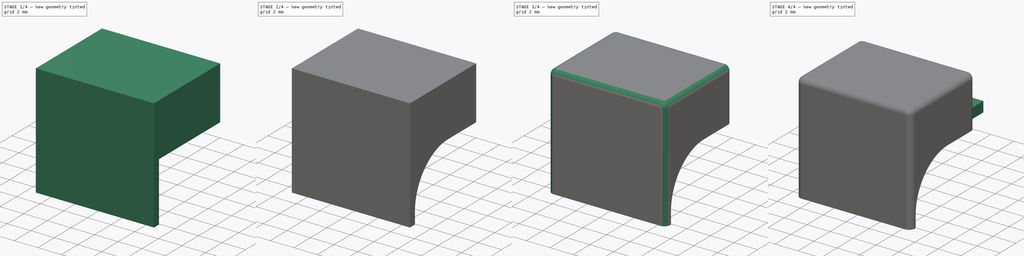
[diagram: build sequence overview — one tinted view per stage of 4, left to right]
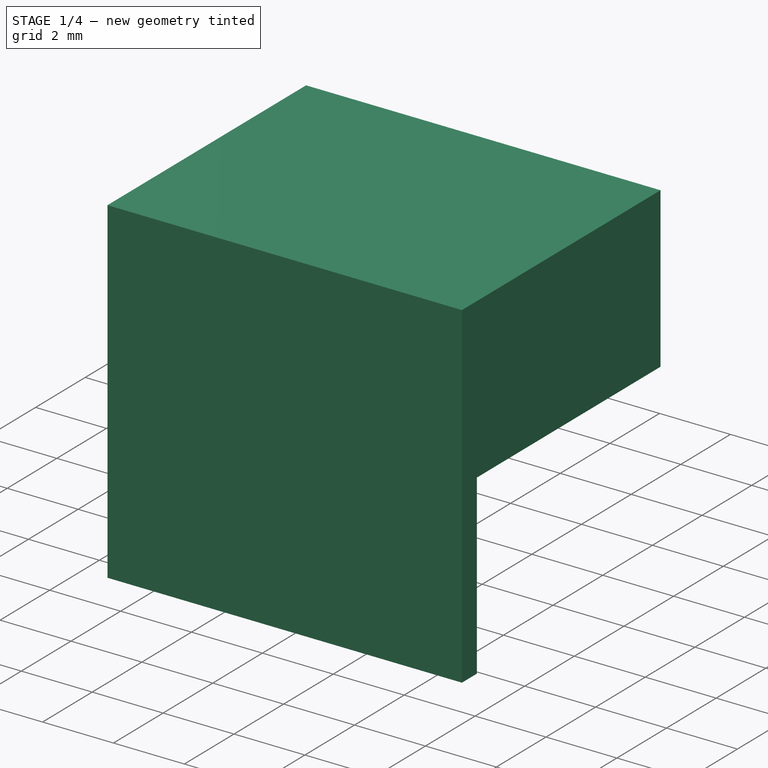
[diagram: stage 1 of 4 — iso view after this stage's code; geometry added in this stage tinted green]
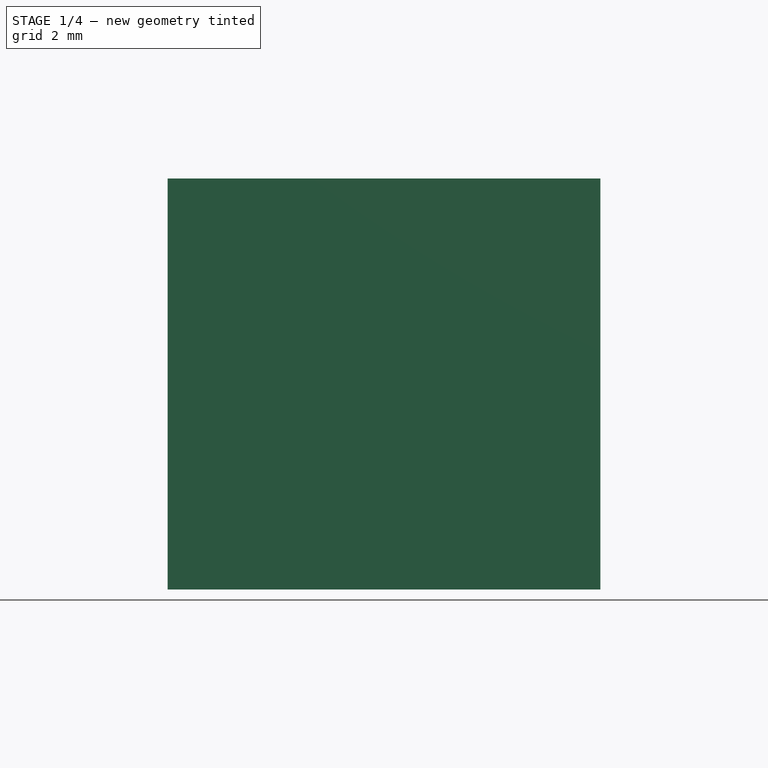
[diagram: stage 1 of 4 — front view after this stage's code; geometry added in this stage tinted green]
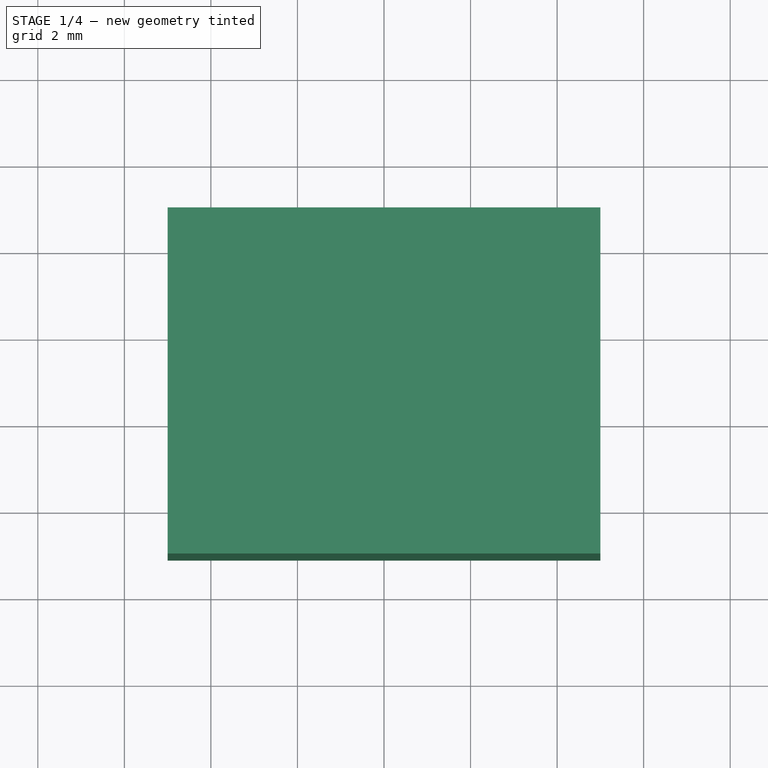
[diagram: stage 1 of 4 — top view after this stage's code; geometry added in this stage tinted green]
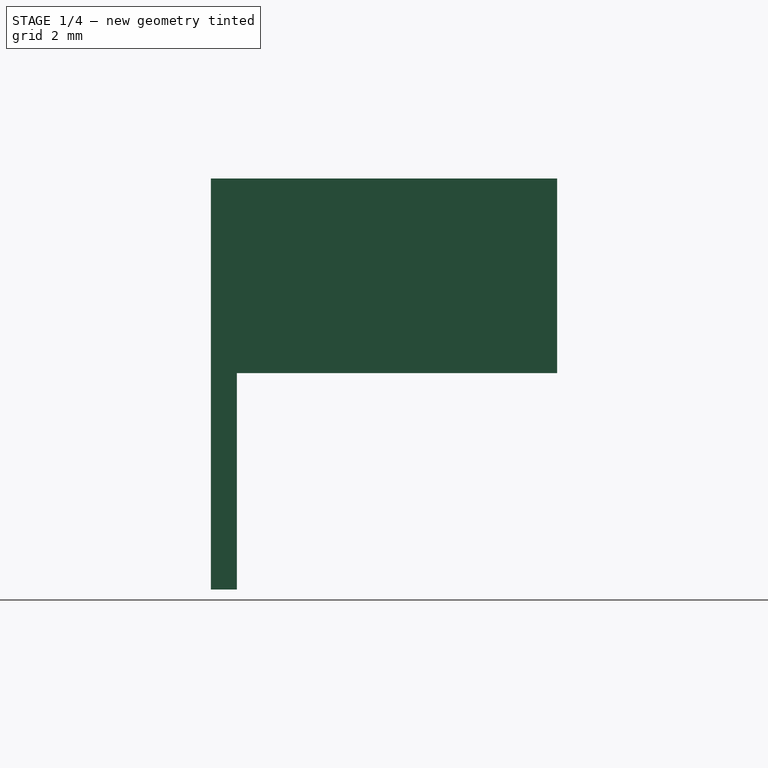
[diagram: stage 1 of 4 — right view after this stage's code; geometry added in this stage tinted green]
FCSTD DOCUMENT  (FreeCAD 0.18R16146 (Git))
Label: ButtonOhne
License: All rights reserved
LicenseURL: http://en.wikipedia.org/wiki/All_rights_reserved
objects: Sketcher::SketchObject×5, PartDesign::Fillet×5, PartDesign::Pad×3, Part::Feature×2, PartDesign::Pocket×2, PartDesign::Plane×1, PartDesign::Mirrored×1, PartDesign::Body×1
note: 25 computed .brp shape members not serialized (recipe doc carries the construction recipe); baked Part::Feature solids carry a one-line shape summary decoded from their .brp

FEATURE [Part::Feature] Part__Feature  label="LED_WS2812_PLCC6_50x50mm_P16mm"
  shape: bbox 5.4 x 5 x 1.85 mm, 94 faces (baked)
FEATURE [PartDesign::Plane] DatumPlane  label="UnterkanteFaceplate"
  Length = 24
  MapMode = 2
  Placement = pos=(0,0,10) rot=(0,0,1;0rad)
  ResizeMode = 0
  Width = 24
FEATURE [Sketcher::SketchObject] Sketch
  MapMode = 5
  Placement = pos=(0,0,10) rot=(0,0,1;0rad)
  Support = -> [DatumPlane]
  sketch-geometry (5):
    g0: LineSegment StartX=-5 StartY=2.9 StartZ=0 EndX=5 EndY=2.9 EndZ=0
    g1: LineSegment StartX=5 StartY=2.9 StartZ=0 EndX=5 EndY=-5.1 EndZ=0
    g2: LineSegment StartX=5 StartY=-5.1 StartZ=0 EndX=-5 EndY=-5.1 EndZ=0
    g3: LineSegment StartX=-5 StartY=-5.1 StartZ=0 EndX=-5 EndY=2.9 EndZ=0
    g4: GeomPoint X=0 Y=-1.1 Z=0
  constraints (13):
    c: Coincident(g0,g1)
    c: Coincident(g1,g2)
    c: Coincident(g2,g3)
    c: Coincident(g3,g0)
    c: Horizontal(g0)
    c: Horizontal(g2)
    c: Vertical(g1)
    c: Vertical(g3)
    c: DistanceY(g1,g1) = 8
    c: DistanceX(g0,g0) = 10
    c: PointOnObject(g4,g-2)
    c: DistanceY(g4,g-1) = 1.1
    c: Symmetric(g0,g1,g4)
FEATURE [Part::Feature] Part__Feature001  label="SW_SPST_CK_RS282G05A3"
  Placement = pos=(0,-4.5,0) rot=(0,0,1;0rad)
  shape: bbox 8 x 3.5 x 2.5 mm, 109 faces (baked)
FEATURE [PartDesign::Pad] Pad
  Length = 2
  Length2 = 7.5
  Placement = pos=(0,0,10) rot=(0,0,1;0rad)
  Profile = -> Sketch
  Reversed = true
  Type = 4
FEATURE [Sketcher::SketchObject] Sketch001
  ExternalGeometry = -> [Pad]
  MapMode = 5
  Placement = pos=(0,0,2.5) rot=(1,0,0;3.14159rad)
  Support = -> [Pad]
  sketch-geometry (5):
    g0: GeomPoint X=0 Y=1.1 Z=0
    g1: LineSegment StartX=-4.6 StartY=4.5 StartZ=0 EndX=4.6 EndY=4.5 EndZ=0
    g2: LineSegment StartX=4.6 StartY=4.5 StartZ=0 EndX=4.6 EndY=-2.5 EndZ=0
    g3: LineSegment StartX=4.6 StartY=-2.5 StartZ=0 EndX=-4.6 EndY=-2.5 EndZ=0
    g4: LineSegment StartX=-4.6 StartY=-2.5 StartZ=0 EndX=-4.6 EndY=4.5 EndZ=0
  constraints (12):
    c: Symmetric(g-3,g-4,g0)
    c: Coincident(g1,g2)
    c: Coincident(g2,g3)
    c: Coincident(g3,g4)
    c: Coincident(g4,g1)
    c: Horizontal(g1)
    c: Vertical(g2)
    c: Vertical(g4)
    c: DistanceY(g1,g-3) = 0.6
    c: DistanceY(g-4,g2) = 0.4
    c: Symmetric(g3,g2,g-2)
    c: DistanceX(g2,g-4) = 0.4
FEATURE [PartDesign::Pocket] Pocket
  BaseFeature = -> Pad
  Length = 8
  Length2 = 100
  Placement = pos=(0,0,10) rot=(0,0,1;0rad)
  Profile = -> Sketch001
  Type = 0
FEATURE [Sketcher::SketchObject] Sketch002
  ExternalGeometry = -> [Pocket]
  MapMode = 5
  Placement = pos=(0,0,2.5) rot=(1,0,0;3.14159rad)
  Support = -> [Pocket]
  sketch-geometry (8):
    g0: LineSegment StartX=-4.6 StartY=4.5 StartZ=0 EndX=-5 EndY=4.5 EndZ=0
    g1: LineSegment StartX=-5 StartY=4.5 StartZ=0 EndX=-5 EndY=-2.9 EndZ=0
    g2: LineSegment StartX=-5 StartY=-2.9 StartZ=0 EndX=5 EndY=-2.9 EndZ=0
    g3: LineSegment StartX=5 StartY=-2.9 StartZ=0 EndX=5 EndY=4.5 EndZ=0
    g4: LineSegment StartX=5 StartY=4.5 StartZ=0 EndX=4.6 EndY=4.5 EndZ=0
    g5: LineSegment StartX=-4.6 StartY=4.5 StartZ=0 EndX=-4.6 EndY=-2.5 EndZ=0
    g6: LineSegment StartX=-4.6 StartY=-2.5 StartZ=0 EndX=4.6 EndY=-2.5 EndZ=0
    g7: LineSegment StartX=4.6 StartY=-2.5 StartZ=0 EndX=4.6 EndY=4.5 EndZ=0
  constraints (18):
    c: Coincident(g0,g-6)
    c: PointOnObject(g0,g-4)
    c: Horizontal(g0)
    c: Coincident(g0,g1)
    c: Coincident(g1,g-4)
    c: Coincident(g1,g2)
    c: Coincident(g2,g-7)
    c: Coincident(g2,g3)
    c: PointOnObject(g3,g-7)
    c: Coincident(g3,g4)
    c: Coincident(g4,g-8)
    c: Horizontal(g4)
    c: Coincident(g0,g5)
    c: Coincident(g5,g-5)
    c: Coincident(g5,g6)
    c: Coincident(g6,g-8)
    c: Coincident(g6,g7)
    c: Coincident(g7,g4)
FEATURE [PartDesign::Pocket] Pocket001
  BaseFeature = -> Pocket
  Length = 5
  Length2 = 100
  Placement = pos=(0,0,10) rot=(0,0,1;0rad)
  Profile = -> Sketch002
  Type = 0
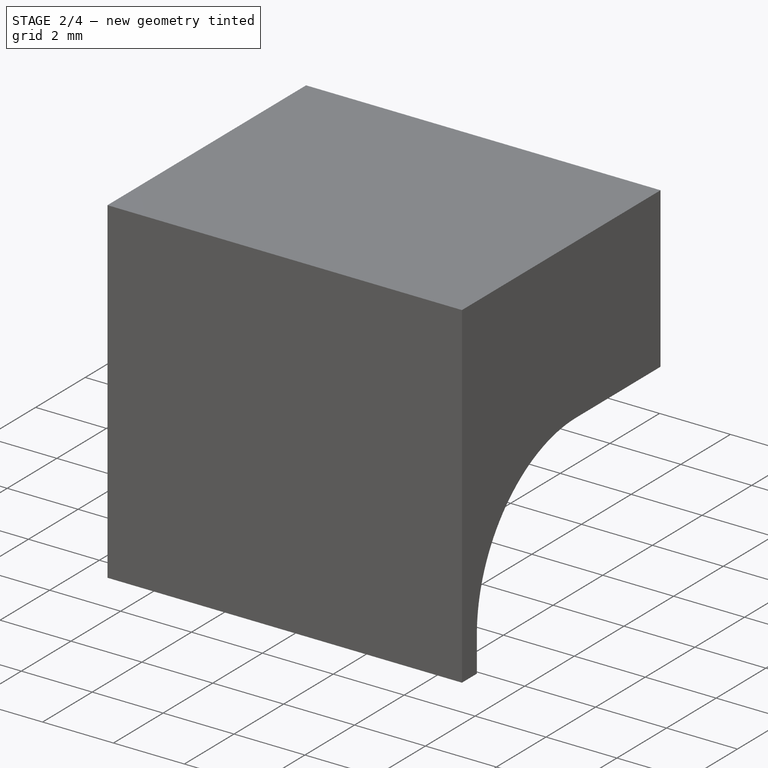
[diagram: stage 2 of 4 — iso view after this stage's code; geometry added in this stage tinted green]
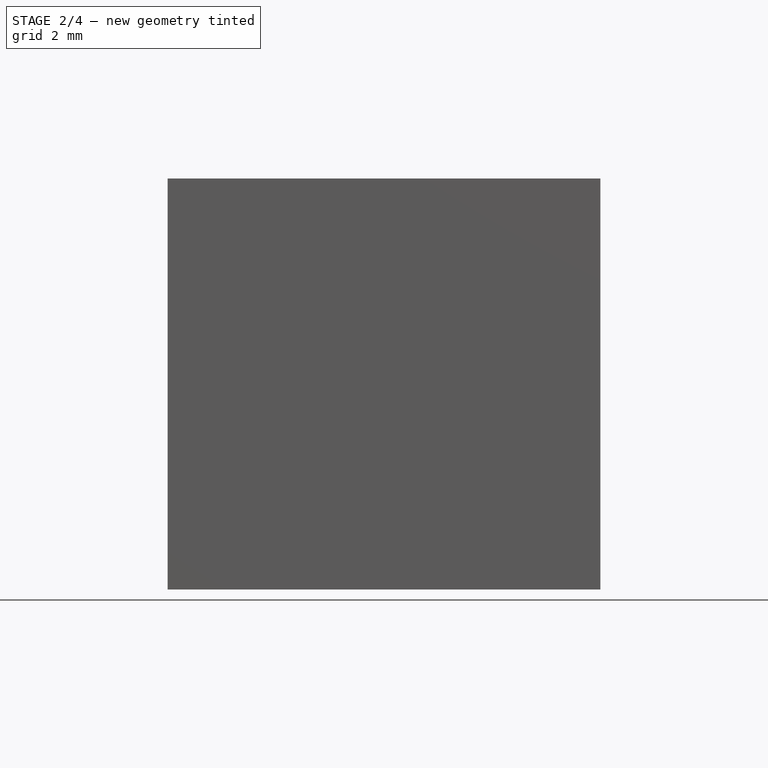
[diagram: stage 2 of 4 — front view after this stage's code; geometry added in this stage tinted green]
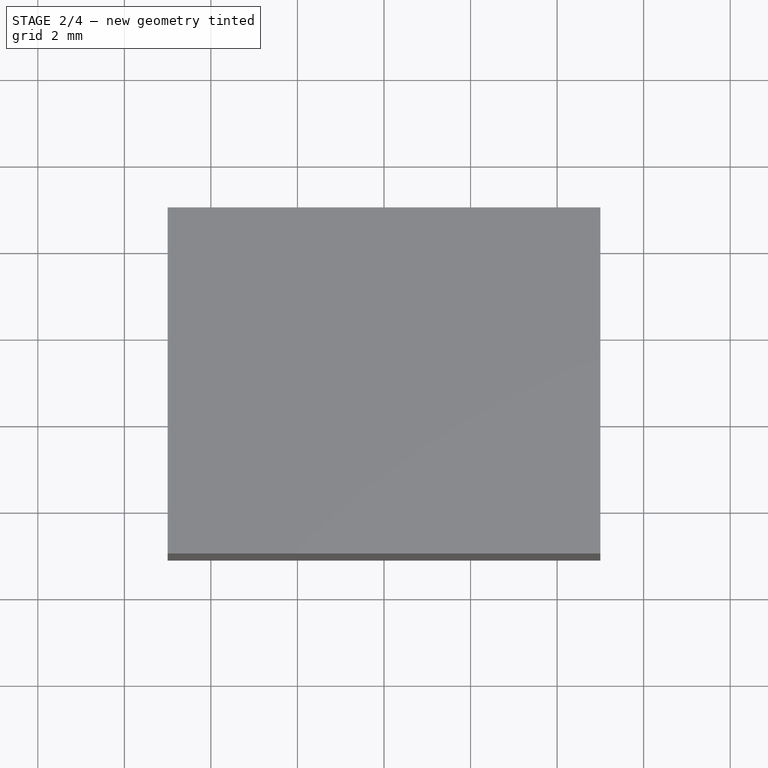
[diagram: stage 2 of 4 — top view after this stage's code; geometry added in this stage tinted green]
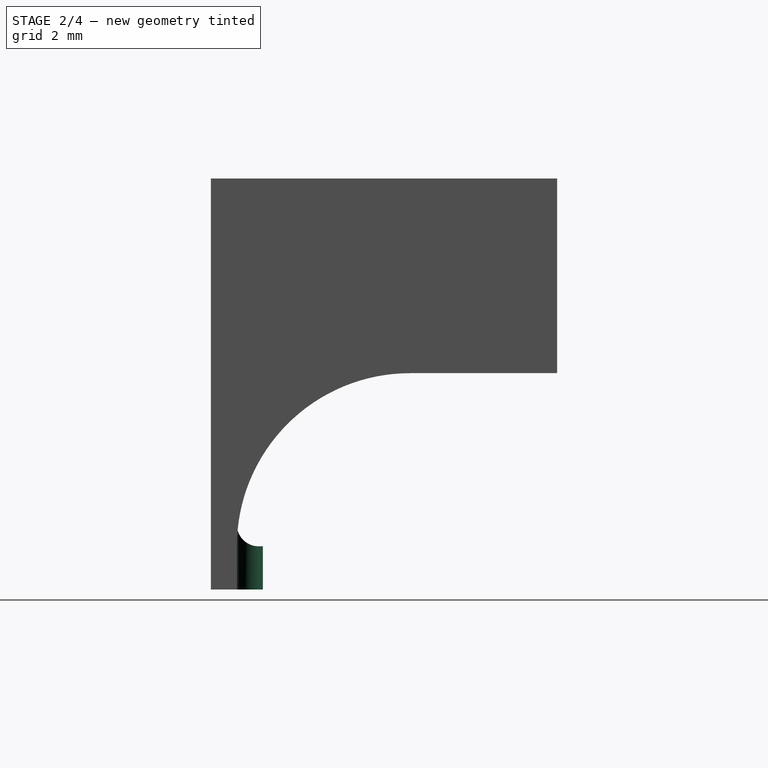
[diagram: stage 2 of 4 — right view after this stage's code; geometry added in this stage tinted green]
FEATURE [Sketcher::SketchObject] Sketch003
  ExternalGeometry = -> [Pocket001]
  MapMode = 5
  Placement = pos=(0,-4.5,10) rot=(0,0.707107,0.707107;3.14159rad)
  Support = -> [Pocket001]
  sketch-geometry (5):
    g0: LineSegment StartX=-1.5 StartY=-6.5 StartZ=0 EndX=1.5 EndY=-6.5 EndZ=0
    g1: LineSegment StartX=1.5 StartY=-6.5 StartZ=0 EndX=1.5 EndY=-7.5 EndZ=0
    g2: LineSegment StartX=1.5 StartY=-7.5 StartZ=0 EndX=-1.5 EndY=-7.5 EndZ=0
    g3: LineSegment StartX=-1.5 StartY=-7.5 StartZ=0 EndX=-1.5 EndY=-6.5 EndZ=0
    g4: GeomPoint X=0 Y=-7 Z=0
  constraints (12):
    c: Coincident(g0,g1)
    c: Coincident(g1,g2)
    c: Coincident(g2,g3)
    c: Coincident(g3,g0)
    c: Horizontal(g0)
    c: Vertical(g1)
    c: Vertical(g3)
    c: DistanceY(g1,g1) = 1
    c: DistanceX(g0,g0) = 3
    c: PointOnObject(g4,g-2)
    c: Symmetric(g0,g1,g4)
    c: Tangent(g2,g-3)
FEATURE [PartDesign::Pad] Pad001  label="Lasche Btn"
  BaseFeature = -> Pocket001
  Length = 0.6
  Length2 = 100
  Placement = pos=(0,0,10) rot=(0,0,1;0rad)
  Profile = -> Sketch003
  Type = 0
FEATURE [PartDesign::Fillet] Fillet
  Base = -> Pad001 [Edge37,Edge36,Edge38]
  BaseFeature = -> Pad001
  Placement = pos=(0,0,10) rot=(0,0,1;0rad)
  Radius = 0.5
FEATURE [PartDesign::Fillet] Fillet001
  Base = -> Fillet [Edge25,Edge36]
  BaseFeature = -> Fillet
  Placement = pos=(0,0,10) rot=(0,0,1;0rad)
  Radius = 4
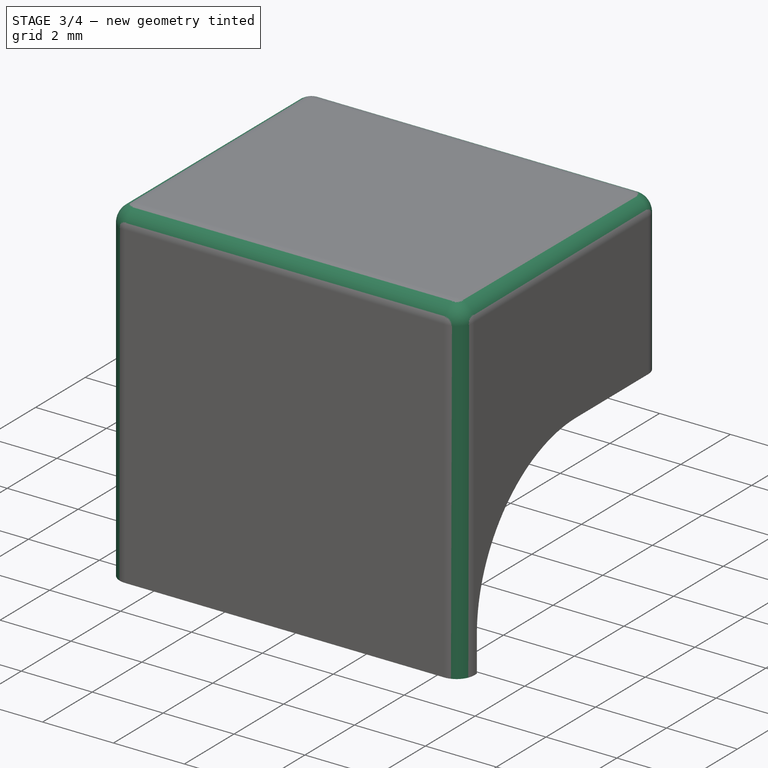
[diagram: stage 3 of 4 — iso view after this stage's code; geometry added in this stage tinted green]
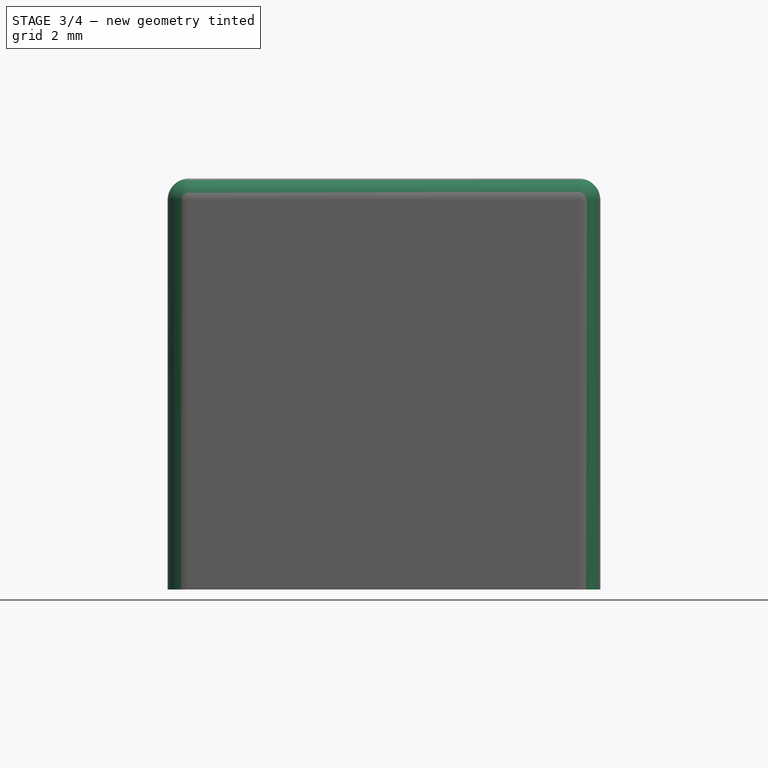
[diagram: stage 3 of 4 — front view after this stage's code; geometry added in this stage tinted green]
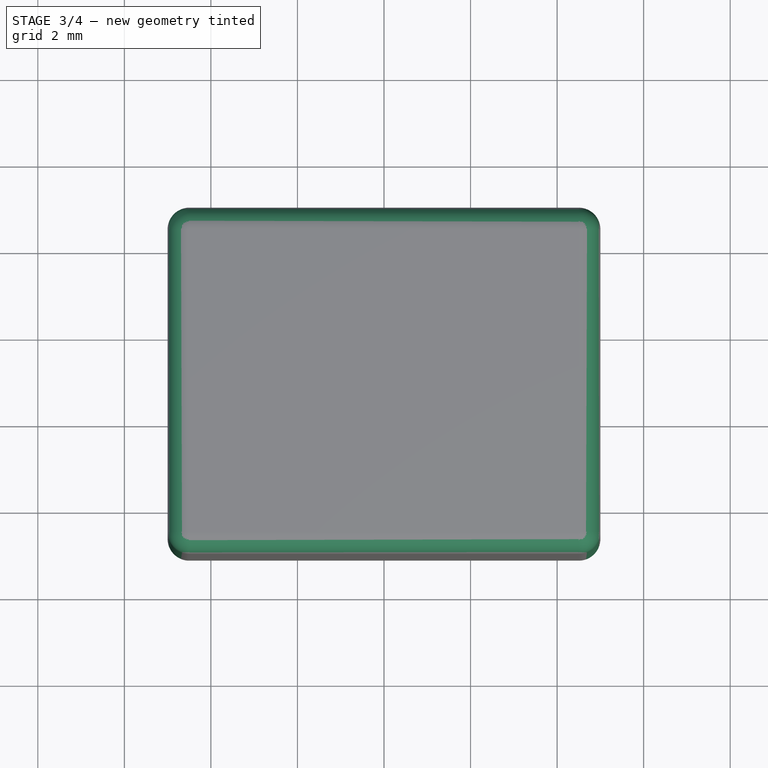
[diagram: stage 3 of 4 — top view after this stage's code; geometry added in this stage tinted green]
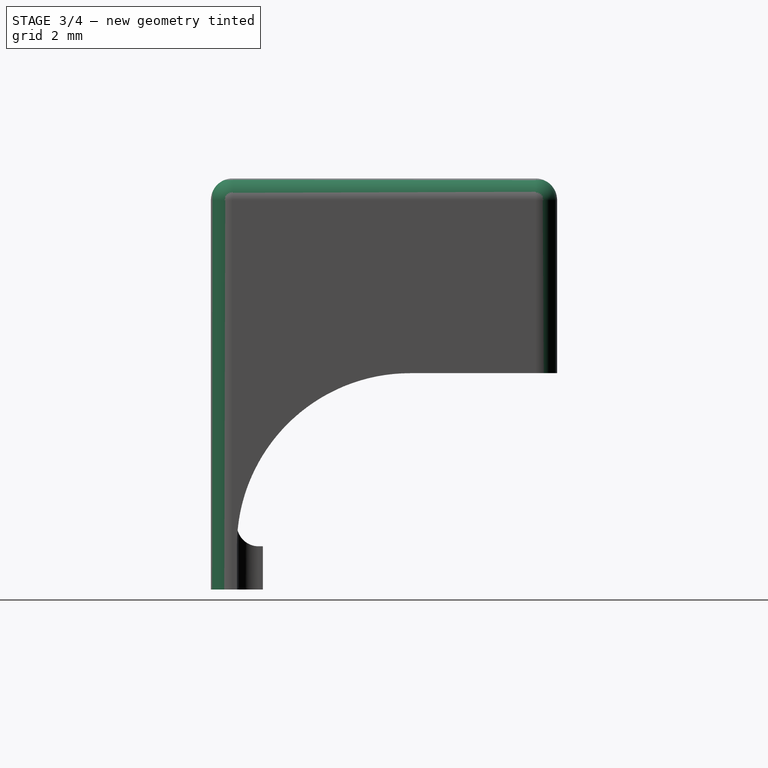
[diagram: stage 3 of 4 — right view after this stage's code; geometry added in this stage tinted green]
FEATURE [PartDesign::Fillet] Fillet002  label="Fillet002innen"
  Base = -> Fillet001 [Edge27,Edge29,Edge26,Edge53,Edge23,Edge52,Edge51,Edge22,Edge24]
  BaseFeature = -> Fillet001
  Placement = pos=(0,0,10) rot=(0,0,1;0rad)
  Radius = 0.4
FEATURE [PartDesign::Fillet] Fillet003
  Base = -> Fillet002 [Edge58,Edge59,Edge57,Edge62,Edge80,Edge37,Edge38,Edge36]
  BaseFeature = -> Fillet002
  Placement = pos=(0,0,10) rot=(0,0,1;0rad)
  Radius = 0.5
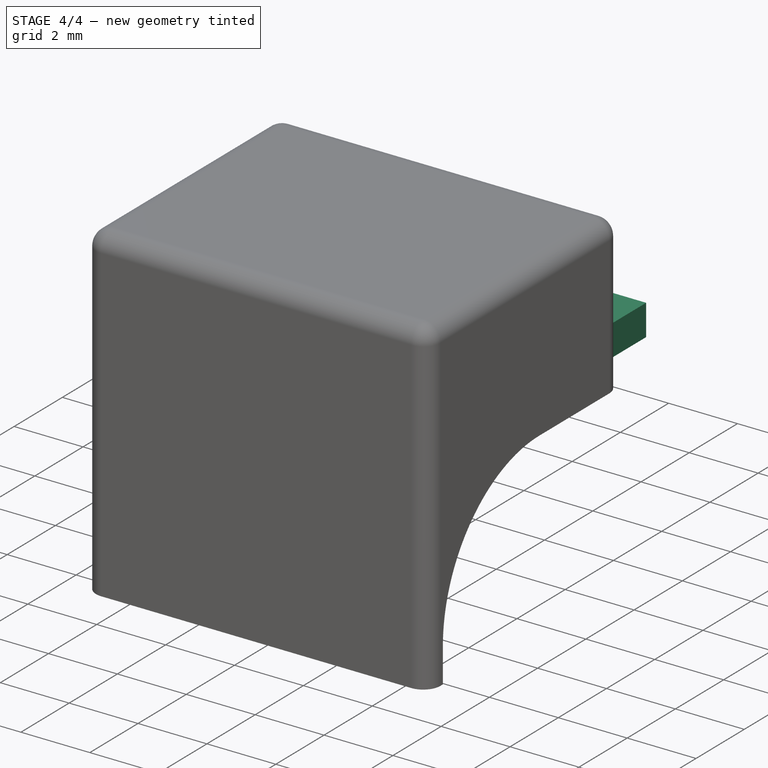
[diagram: stage 4 of 4 — iso view after this stage's code; geometry added in this stage tinted green]
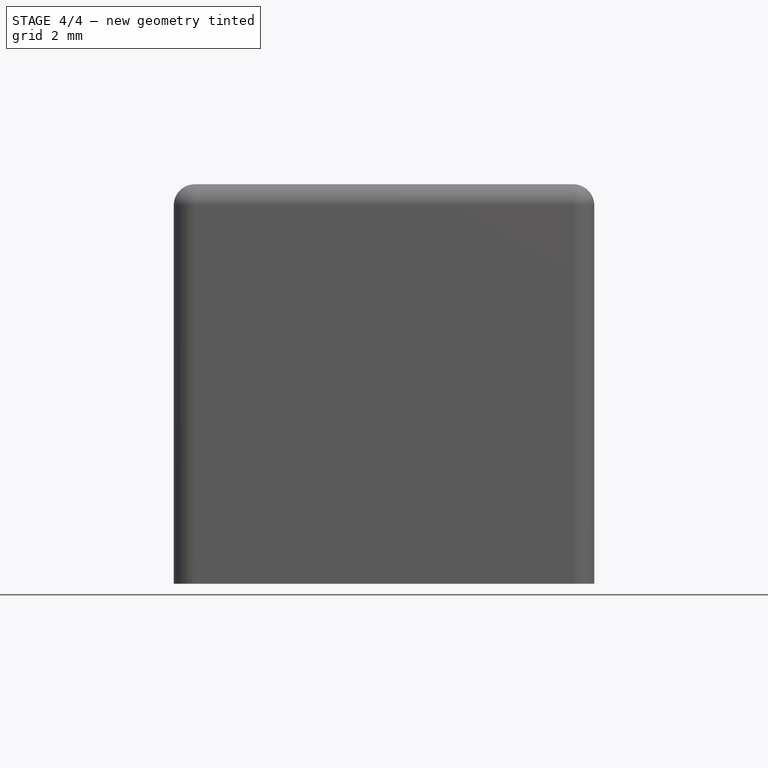
[diagram: stage 4 of 4 — front view after this stage's code; geometry added in this stage tinted green]
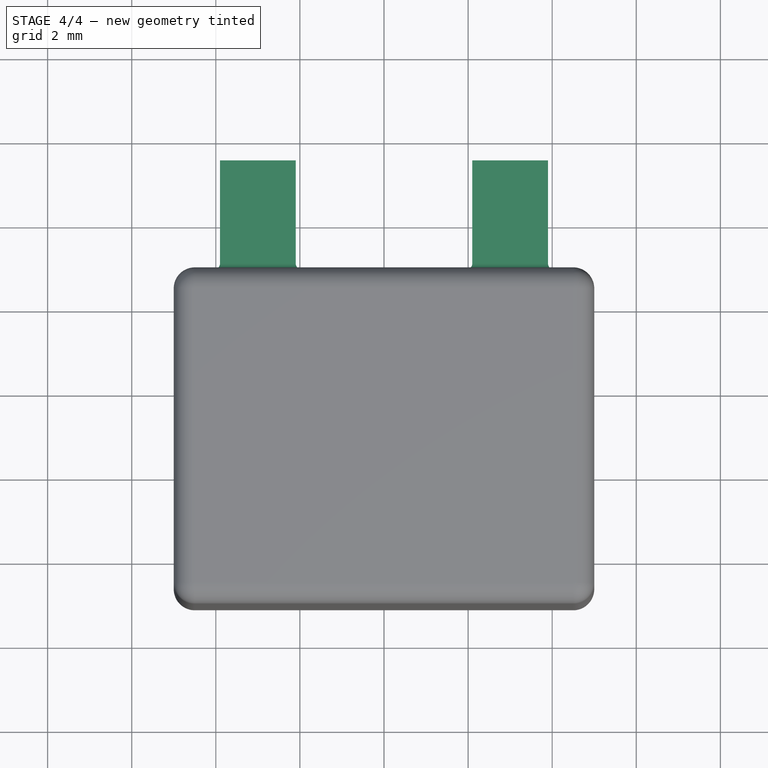
[diagram: stage 4 of 4 — top view after this stage's code; geometry added in this stage tinted green]
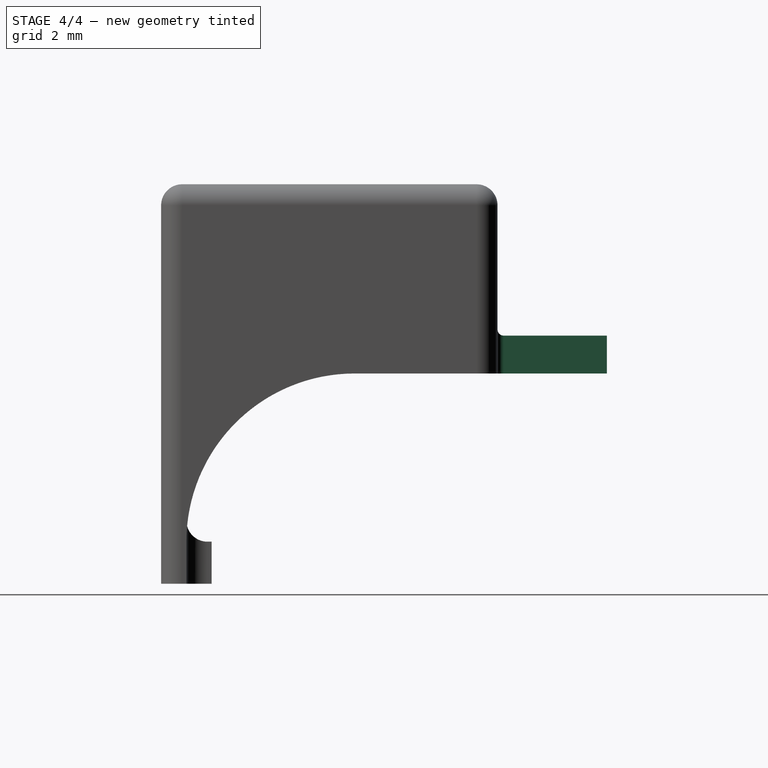
[diagram: stage 4 of 4 — right view after this stage's code; geometry added in this stage tinted green]
FEATURE [Sketcher::SketchObject] Sketch004
  ExternalGeometry = -> [Fillet003]
  MapMode = 5
  Placement = pos=(0,2.9,10) rot=(0,0.707107,0.707107;3.14159rad)
  Support = -> [Fillet003]
  sketch-geometry (5):
    g0: LineSegment StartX=-3.9 StartY=-1.6 StartZ=0 EndX=-2.1 EndY=-1.6 EndZ=0
    g1: LineSegment StartX=-2.1 StartY=-1.6 StartZ=0 EndX=-2.1 EndY=-2.5 EndZ=0
    g2: LineSegment StartX=-2.1 StartY=-2.5 StartZ=0 EndX=-3.9 EndY=-2.5 EndZ=0
    g3: LineSegment StartX=-3.9 StartY=-2.5 StartZ=0 EndX=-3.9 EndY=-1.6 EndZ=0
    g4: GeomPoint X=-3 Y=-2.05 Z=0
  constraints (12):
    c: Coincident(g0,g1)
    c: Coincident(g1,g2)
    c: Coincident(g2,g3)
    c: Coincident(g3,g0)
    c: Horizontal(g0)
    c: Vertical(g1)
    c: Vertical(g3)
    c: Symmetric(g0,g1,g4)
    c: DistanceX(g0,g0) = 1.8
    c: DistanceY(g1,g1) = 0.9
    c: DistanceX(g4,g-1) = 3
    c: Tangent(g2,g-3)
FEATURE [PartDesign::Pad] Pad002  label="Lasche"
  BaseFeature = -> Fillet003
  Length = 2.6
  Length2 = 100
  Placement = pos=(0,0,10) rot=(0,0,1;0rad)
  Profile = -> Sketch004
  Type = 0
FEATURE [PartDesign::Mirrored] Mirrored
  BaseFeature = -> Pad002
  MirrorPlane = -> Sketch004 [V_Axis]
  Originals = -> [Pad002]
  Placement = pos=(0,0,10) rot=(0,0,1;0rad)
FEATURE [PartDesign::Fillet] Fillet004
  Base = -> Mirrored [Edge29,Edge27,Edge30,Edge28,Edge32,Edge33,Edge31,Edge34]
  BaseFeature = -> Mirrored
  Placement = pos=(0,0,10) rot=(0,0,1;0rad)
  Radius = 0.15
FEATURE [PartDesign::Body] Body  label="Stößel"
  Group = -> [DatumPlane,Sketch,Pad,Sketch001,Pocket,Sketch002,Pocket001,Sketch003,Pad001,Fillet,Fillet001,Fillet002,Fillet003,Sketch004,Pad002,Mirrored,Fillet004]
  Origin = -> Origin
  Tip = -> Fillet004
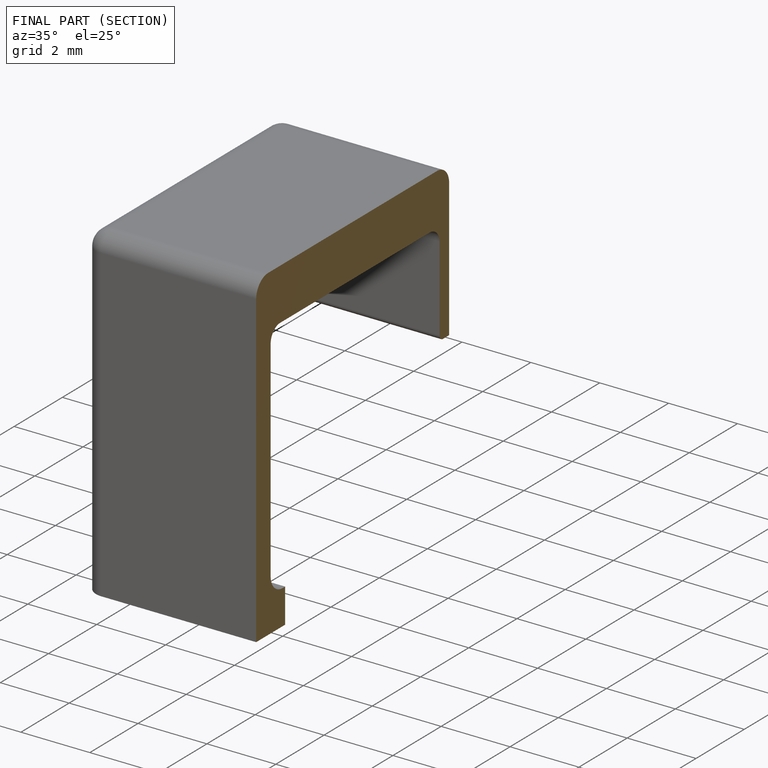
[diagram: finished part — half-section view (interior)]
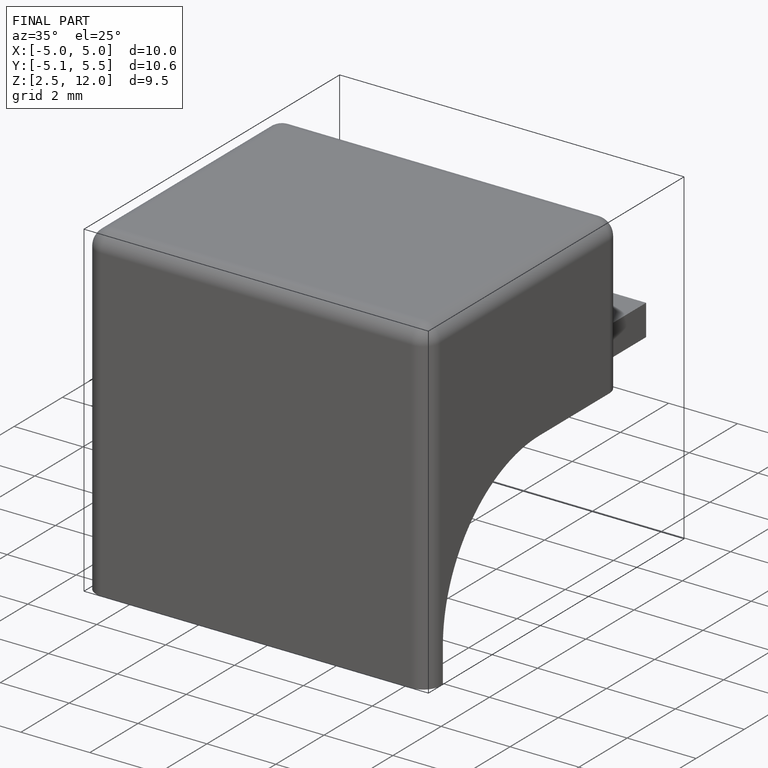
[diagram: finished part — iso view with bounding-box wireframe]
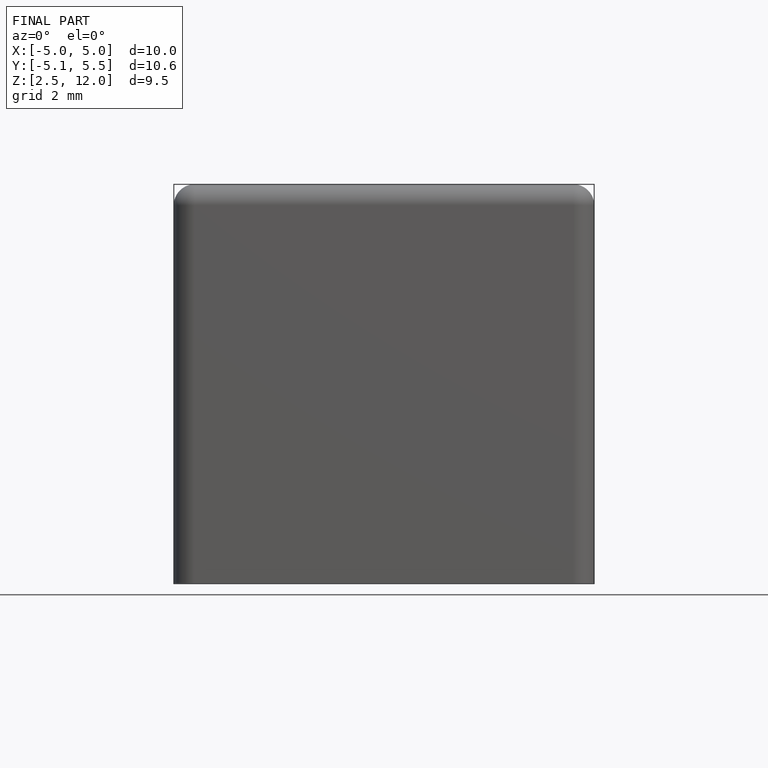
[diagram: finished part — front view with bounding-box wireframe]
